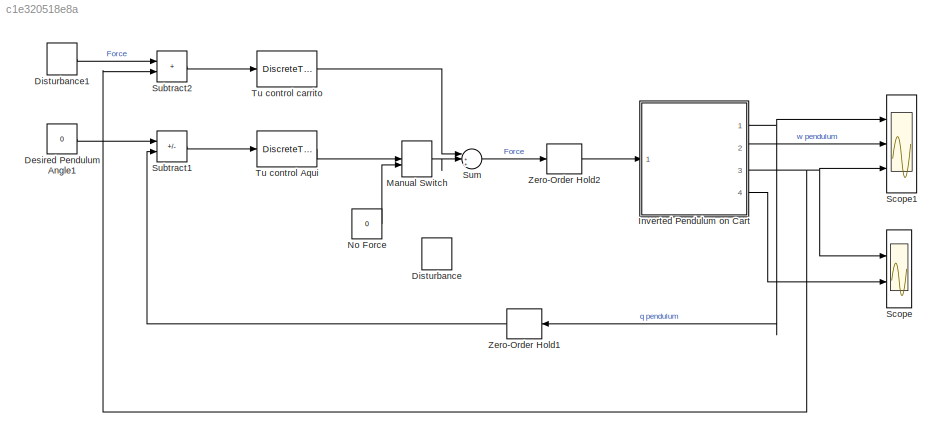
MODEL slx_c1e320518e8a
KIND model
CONFIG AbsTol = auto
CONFIG EnableMultiTasking = on
CONFIG FixedStep = auto
CONFIG MaxStep = auto
CONFIG MinStep = auto
CONFIG RelTol = 1e-3
CONFIG SampleTimeConstraint = Unconstrained
CONFIG SolverName = VariableStepAuto
CONFIG StartTime = 0.0
CONFIG StopTime = 40
BLOCK [Constant] Desired Pendulum Angle1
  Value = 0
BLOCK [DiscretePulseGenerator] Disturbance
  Amplitude = 100
  PhaseDelay = 1
  Ports = [0, 1]
  PulseType = Time based
  PulseWidth = 0.5
BLOCK [DiscretePulseGenerator] Disturbance1
  Amplitude = 0.6
  Period = 20
  PhaseDelay = 1
  Ports = [0, 1]
  PulseType = Time based
  PulseWidth = 50
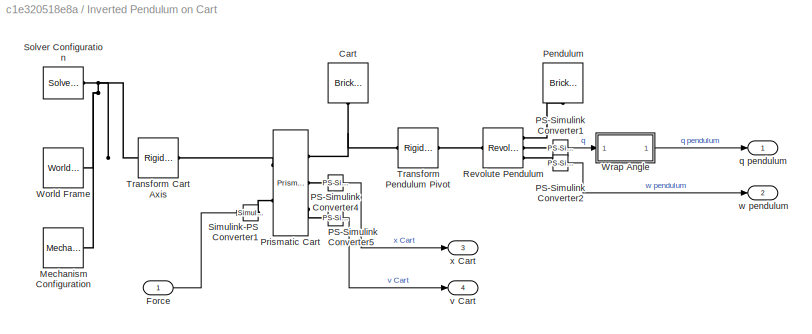
BLOCK [SubSystem] Inverted Pendulum on Cart
  Ports = [1, 4]
  RequestExecContextInheritance = off
BLOCK [Reference] Inverted Pendulum on Cart/Cart  REF=sm_lib/Body Elements/Brick Solid
  NameLocation = left
  Ports = [0, 0, 0, 0, 0, 0, 1]
  SourceBlock = sm_lib/Body Elements/Brick Solid
  SourceProductBaseCode = MS
  SourceType = Brick Solid
BLOCK [Inport] Inverted Pendulum on Cart/Force
BLOCK [Reference] Inverted Pendulum on Cart/Mechanism Configuration  REF=sm_lib/Utilities/Mechanism
Configuration
  Ports = [0, 0, 0, 0, 0, 0, 1]
  SourceBlock = sm_lib/Utilities/Mechanism\nConfiguration
  SourceProductBaseCode = MS
  SourceType = Mechanism\nConfiguration
BLOCK [Reference] Inverted Pendulum on Cart/PS-Simulink Converter1  REF=nesl_utility/PS-Simulink
Converter
  NameLocation = top
  Ports = [0, 1, 0, 0, 0, 1]
  SourceBlock = nesl_utility/PS-Simulink\nConverter
  SourceProductBaseCode = SS,PW,VE
  SourceType = PS-Simulink\nConverter
BLOCK [Reference] Inverted Pendulum on Cart/PS-Simulink Converter2  REF=nesl_utility/PS-Simulink
Converter
  NameLocation = top
  Ports = [0, 1, 0, 0, 0, 1]
  SourceBlock = nesl_utility/PS-Simulink\nConverter
  SourceProductBaseCode = SS,PW,VE
  SourceType = PS-Simulink\nConverter
BLOCK [Reference] Inverted Pendulum on Cart/PS-Simulink Converter4  REF=nesl_utility/PS-Simulink
Converter
  NameLocation = top
  Ports = [0, 1, 0, 0, 0, 1]
  SourceBlock = nesl_utility/PS-Simulink\nConverter
  SourceProductBaseCode = SS,PW,VE
  SourceType = PS-Simulink\nConverter
BLOCK [Reference] Inverted Pendulum on Cart/PS-Simulink Converter5  REF=nesl_utility/PS-Simulink
Converter
  Ports = [0, 1, 0, 0, 0, 1]
  SourceBlock = nesl_utility/PS-Simulink\nConverter
  SourceProductBaseCode = SS,PW,VE
  SourceType = PS-Simulink\nConverter
BLOCK [Reference] Inverted Pendulum on Cart/Pendulum  REF=sm_lib/Body Elements/Brick Solid
  NameLocation = left
  Ports = [0, 0, 0, 0, 0, 1]
  SourceBlock = sm_lib/Body Elements/Brick Solid
  SourceProductBaseCode = MS
  SourceType = Brick Solid
BLOCK [Reference] Inverted Pendulum on Cart/Prismatic Cart  REF=sm_lib/Joints/Prismatic
Joint
  Ports = [0, 0, 0, 0, 0, 2, 3]
  SourceBlock = sm_lib/Joints/Prismatic\nJoint
  SourceProductBaseCode = MS
  SourceType = Prismatic\nJoint
BLOCK [Reference] Inverted Pendulum on Cart/Revolute Pendulum  REF=sm_lib/Joints/Revolute Joint
  Ports = [0, 0, 0, 0, 0, 1, 3]
  SourceBlock = sm_lib/Joints/Revolute Joint
  SourceProductBaseCode = MS
  SourceType = Revolute Joint
BLOCK [Reference] Inverted Pendulum on Cart/Simulink-PS Converter1  REF=nesl_utility/Simulink-PS
Converter
  Ports = [1, 0, 0, 0, 0, 0, 1]
  SourceBlock = nesl_utility/Simulink-PS\nConverter
  SourceProductBaseCode = SS,PW,VE
  SourceType = Simulink-PS\nConverter
BLOCK [Reference] Inverted Pendulum on Cart/Solver Configuration  REF=nesl_utility/Solver
Configuration
  Ports = [0, 0, 0, 0, 0, 0, 1]
  SourceBlock = nesl_utility/Solver\nConfiguration
  SourceProductBaseCode = SS,PW,VE
  SourceType = Solver\nConfiguration
BLOCK [Reference] Inverted Pendulum on Cart/Transform Cart Axis  REF=sm_lib/Frames and
Transforms/Rigid
Transform
  Ports = [0, 0, 0, 0, 0, 1, 1]
  SourceBlock = sm_lib/Frames and\nTransforms/Rigid\nTransform
  SourceProductBaseCode = MS
  SourceType = Rigid\nTransform
BLOCK [Reference] Inverted Pendulum on Cart/Transform Pendulum Pivot  REF=sm_lib/Frames and
Transforms/Rigid
Transform
  Ports = [0, 0, 0, 0, 0, 1, 1]
  SourceBlock = sm_lib/Frames and\nTransforms/Rigid\nTransform
  SourceProductBaseCode = MS
  SourceType = Rigid\nTransform
BLOCK [Reference] Inverted Pendulum on Cart/World Frame  REF=sm_lib/Frames and
Transforms/World Frame
  Ports = [0, 0, 0, 0, 0, 0, 1]
  SourceBlock = sm_lib/Frames and\nTransforms/World Frame
  SourceProductBaseCode = MS
  SourceType = World Frame
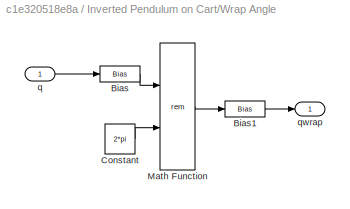
BLOCK [SubSystem] Inverted Pendulum on Cart/Wrap Angle
  Ports = [1, 1]
  RequestExecContextInheritance = off
BLOCK [Bias] Inverted Pendulum on Cart/Wrap Angle/Bias
  Bias = pi
  SaturateOnIntegerOverflow = off
BLOCK [Bias] Inverted Pendulum on Cart/Wrap Angle/Bias1
  Bias = -pi
  SaturateOnIntegerOverflow = off
BLOCK [Constant] Inverted Pendulum on Cart/Wrap Angle/Constant
  Value = 2*pi
BLOCK [Math] Inverted Pendulum on Cart/Wrap Angle/Math Function
  Operator = rem
  Ports = [2, 1]
  SignedPower = on
BLOCK [Inport] Inverted Pendulum on Cart/Wrap Angle/q
BLOCK [Outport] Inverted Pendulum on Cart/Wrap Angle/qwrap
  VectorParamsAs1DForOutWhenUnconnected = off
BLOCK [Outport] Inverted Pendulum on Cart/q pendulum
  VectorParamsAs1DForOutWhenUnconnected = off
BLOCK [Outport] Inverted Pendulum on Cart/v Cart
  Port = 4
  VectorParamsAs1DForOutWhenUnconnected = off
BLOCK [Outport] Inverted Pendulum on Cart/w pendulum
  Port = 2
  VectorParamsAs1DForOutWhenUnconnected = off
BLOCK [Outport] Inverted Pendulum on Cart/x Cart
  Port = 3
  VectorParamsAs1DForOutWhenUnconnected = off
BLOCK [ManualSwitch] Manual Switch
BLOCK [Constant] No Force
  Value = 0
BLOCK [Scope] Scope
  Floating = off
  NumInputPorts = 2
  Ports = [2]
  ScopeSpecificationString = Simulink.scopes.TimeScopeBlockCfg('CurrentConfiguration', extmgr.ConfigurationSet(extmgr.Configuration('Core','General UI',true),extmgr.Configuration('Core','Source UI',true),extmgr.Configuration('Sources','WiredSimulink',true,'DataLoggingLimitDataPoints',true,'DataLoggingSaveFormat','Array','DataLoggingDecimation','1','DataLoggingDecimateData',true),extmgr.Configuration('Visuals','Time Domain',tr...<+1695ch>
BLOCK [Scope] Scope1
  Floating = off
  NumInputPorts = 3
  Ports = [3]
  ScopeSpecificationString = Simulink.scopes.TimeScopeBlockCfg('CurrentConfiguration', extmgr.ConfigurationSet(extmgr.Configuration('Core','General UI',true),extmgr.Configuration('Core','Source UI',true),extmgr.Configuration('Sources','WiredSimulink',true,'DataLoggingVariableName','ScopeData1'),extmgr.Configuration('Visuals','Time Domain',true,'SerializedDisplays',{struct('MinYLimReal','-0.00767','MaxYLimReal','0.04491','YLab...<+2782ch>
BLOCK [Sum] Subtract1
  IconShape = rectangular
  Inputs = +-
  Ports = [2, 1]
BLOCK [Sum] Subtract2
  IconShape = rectangular
  Ports = [2, 1]
BLOCK [Sum] Sum
  Inputs = |+++
  Ports = [3, 1]
BLOCK [DiscreteTransferFcn] Tu control Aqui
  Denominator = denC
  InputPortMap = u0
  Numerator = numC
  Ports = [1, 1]
  SampleTime = T
BLOCK [DiscreteTransferFcn] Tu control carrito
  Denominator = denCcarrito
  InputPortMap = u0
  Numerator = numCcarrito
  Ports = [1, 1]
  SampleTime = T
BLOCK [ZeroOrderHold] Zero-Order Hold1
  NameLocation = top
  SampleTime = T
BLOCK [ZeroOrderHold] Zero-Order Hold2
  SampleTime = T
LINE Desired Pendulum Angle1:1 -> Subtract1:1
LINE Disturbance1:1 -> Subtract2:1
LINE Inverted Pendulum on Cart/Force:1 -> Inverted Pendulum on Cart/Simulink-PS Converter1:1
LINE Inverted Pendulum on Cart/PS-Simulink Converter1:1 -> Inverted Pendulum on Cart/Wrap Angle:1
LINE Inverted Pendulum on Cart/PS-Simulink Converter2:1 -> Inverted Pendulum on Cart/w pendulum:1
LINE Inverted Pendulum on Cart/PS-Simulink Converter4:1 -> Inverted Pendulum on Cart/x Cart:1
LINE Inverted Pendulum on Cart/PS-Simulink Converter5:1 -> Inverted Pendulum on Cart/v Cart:1
LINE Inverted Pendulum on Cart/Wrap Angle/Bias1:1 -> Inverted Pendulum on Cart/Wrap Angle/qwrap:1
LINE Inverted Pendulum on Cart/Wrap Angle/Bias:1 -> Inverted Pendulum on Cart/Wrap Angle/Math Function:1
LINE Inverted Pendulum on Cart/Wrap Angle/Constant:1 -> Inverted Pendulum on Cart/Wrap Angle/Math Function:2
LINE Inverted Pendulum on Cart/Wrap Angle/Math Function:1 -> Inverted Pendulum on Cart/Wrap Angle/Bias1:1
LINE Inverted Pendulum on Cart/Wrap Angle/q:1 -> Inverted Pendulum on Cart/Wrap Angle/Bias:1
LINE Inverted Pendulum on Cart/Wrap Angle:1 -> Inverted Pendulum on Cart/q pendulum:1
NET Inverted Pendulum on Cart:1 -> Scope1:1, Zero-Order Hold1:1
LINE Inverted Pendulum on Cart:2 -> Scope1:2
NET Inverted Pendulum on Cart:3 -> Scope1:3, Scope:1, Subtract2:2
LINE Inverted Pendulum on Cart:4 -> Scope:2
LINE Manual Switch:1 -> Sum:2
LINE No Force:1 -> Manual Switch:2
LINE Subtract1:1 -> Tu control Aqui:1
LINE Subtract2:1 -> Tu control carrito:1
LINE Sum:1 -> Zero-Order Hold2:1
LINE Tu control Aqui:1 -> Manual Switch:1
LINE Tu control carrito:1 -> Sum:1
LINE Zero-Order Hold1:1 -> Subtract1:2
LINE Zero-Order Hold2:1 -> Inverted Pendulum on Cart:1
PNET net1: Inverted Pendulum on Cart/Cart:RConn1 -- Inverted Pendulum on Cart/Prismatic Cart:RConn1 -- Inverted Pendulum on Cart/Transform Pendulum Pivot:LConn1
PNET net2: Inverted Pendulum on Cart/Mechanism Configuration:RConn1 -- Inverted Pendulum on Cart/Solver Configuration:RConn1 -- Inverted Pendulum on Cart/Transform Cart Axis:LConn1 -- Inverted Pendulum on Cart/World Frame:RConn1
PLINE Inverted Pendulum on Cart/PS-Simulink Converter1:LConn1 -- Inverted Pendulum on Cart/Revolute Pendulum:RConn2
PLINE Inverted Pendulum on Cart/PS-Simulink Converter2:LConn1 -- Inverted Pendulum on Cart/Revolute Pendulum:RConn3
PLINE Inverted Pendulum on Cart/PS-Simulink Converter4:LConn1 -- Inverted Pendulum on Cart/Prismatic Cart:RConn2
PLINE Inverted Pendulum on Cart/PS-Simulink Converter5:LConn1 -- Inverted Pendulum on Cart/Prismatic Cart:RConn3
PLINE Inverted Pendulum on Cart/Pendulum:LConn1 -- Inverted Pendulum on Cart/Revolute Pendulum:RConn1
PLINE Inverted Pendulum on Cart/Prismatic Cart:LConn1 -- Inverted Pendulum on Cart/Transform Cart Axis:RConn1
PLINE Inverted Pendulum on Cart/Prismatic Cart:LConn2 -- Inverted Pendulum on Cart/Simulink-PS Converter1:RConn1
PLINE Inverted Pendulum on Cart/Revolute Pendulum:LConn1 -- Inverted Pendulum on Cart/Transform Pendulum Pivot:RConn1
note: NET lines group one-source signal fan-out (src -> all destinations, sorted); 1:1 wires keep LINE; PNET lines group multi-terminal physical nets as a canonical sorted terminal list (undirected conserving connections); 2-terminal nets keep the pairwise PLINE form
